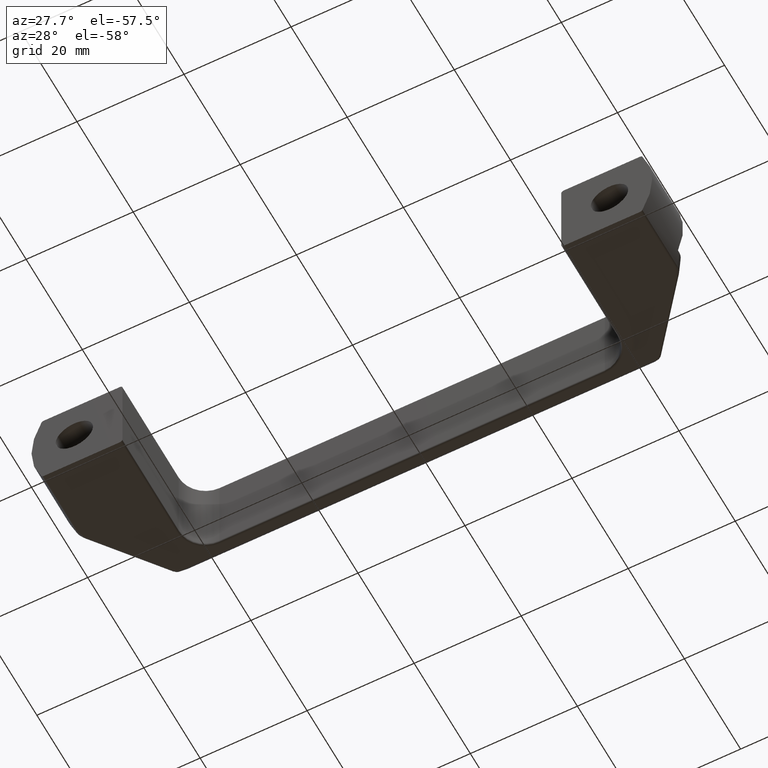
[diagram: clean part render]
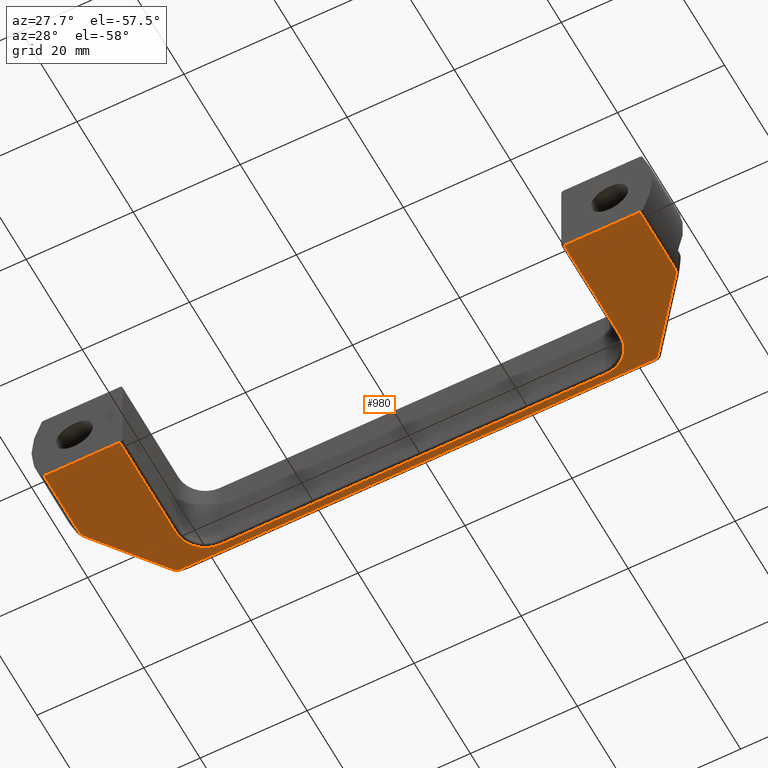
[diagram: same view with one face highlighted and labeled with its STEP entity id]
A machine part, auxiliary view. The second image highlights one B-rep face of the part: STEP entity #980.
In plain terms, the highlighted planar face has unit normal (0, 0, 1).
Its self-contained STEP definition (entity closure, byte-faithful):
#42=B_SPLINE_CURVE_WITH_KNOTS('',3,(#1875,#1876,#1877,#1878),
 .UNSPECIFIED.,.F.,.F.,(4,4),(0.,0.145944618998481),.UNSPECIFIED.);
#43=B_SPLINE_CURVE_WITH_KNOTS('',3,(#1910,#1911,#1912,#1913,#1914),
 .UNSPECIFIED.,.F.,.F.,(4,1,4),(0.,0.0347912856182153,0.0695825712364305),
 .UNSPECIFIED.);
#44=B_SPLINE_CURVE_WITH_KNOTS('',3,(#1946,#1947,#1948,#1949,#1950),
 .UNSPECIFIED.,.F.,.F.,(4,1,4),(0.,0.0347905681330982,0.0695811362661964),
 .UNSPECIFIED.);
#46=B_SPLINE_CURVE_WITH_KNOTS('',3,(#1981,#1982,#1983,#1984),
 .UNSPECIFIED.,.F.,.F.,(4,4),(0.,0.145944462619746),.UNSPECIFIED.);
#83=LINE('',#1475,#141);
#85=LINE('',#1484,#143);
#86=LINE('',#1492,#144);
#87=LINE('',#1498,#145);
#89=LINE('',#1503,#147);
#114=LINE('',#1848,#172);
#115=LINE('',#1882,#173);
#116=LINE('',#1918,#174);
#117=LINE('',#1954,#175);
#118=LINE('',#1986,#176);
#141=VECTOR('',#1199,14.1876166040718);
#143=VECTOR('',#1209,20.);
#144=VECTOR('',#1220,72.);
#145=VECTOR('',#1229,20.);
#147=VECTOR('',#1235,14.1876166040717);
#172=VECTOR('',#1336,12.4158507680428);
#173=VECTOR('',#1343,16.1413156891721);
#174=VECTOR('',#1350,89.1941408859484);
#175=VECTOR('',#1357,16.1413156891721);
#176=VECTOR('',#1362,12.4158507680428);
#191=PLANE('',#1094);
#280=FACE_OUTER_BOUND('',#346,.T.);
#346=EDGE_LOOP('',(#863,#864,#865,#866,#867,#868,#869,#870,#871,#872,#873,
#874,#875,#876,#877,#878));
#383=CIRCLE('',#1036,5.5);
#386=CIRCLE('',#1041,5.5);
#437=VERTEX_POINT('',#1472);
#438=VERTEX_POINT('',#1474);
#439=VERTEX_POINT('',#1478);
#441=VERTEX_POINT('',#1482);
#442=VERTEX_POINT('',#1486);
#443=VERTEX_POINT('',#1490);
#444=VERTEX_POINT('',#1494);
#445=VERTEX_POINT('',#1502);
#487=VERTEX_POINT('',#1846);
#488=VERTEX_POINT('',#1873);
#489=VERTEX_POINT('',#1880);
#490=VERTEX_POINT('',#1908);
#491=VERTEX_POINT('',#1916);
#492=VERTEX_POINT('',#1944);
#493=VERTEX_POINT('',#1952);
#494=VERTEX_POINT('',#1979);
#535=EDGE_CURVE('',#438,#437,#83,.T.);
#540=EDGE_CURVE('',#441,#439,#85,.T.);
#542=EDGE_CURVE('',#442,#441,#383,.T.);
#544=EDGE_CURVE('',#443,#442,#86,.T.);
#546=EDGE_CURVE('',#444,#443,#386,.T.);
#547=EDGE_CURVE('',#438,#444,#87,.T.);
#549=EDGE_CURVE('',#445,#439,#89,.T.);
#613=EDGE_CURVE('',#487,#437,#114,.T.);
#616=EDGE_CURVE('',#488,#487,#42,.T.);
#618=EDGE_CURVE('',#489,#488,#115,.T.);
#620=EDGE_CURVE('',#490,#489,#43,.T.);
#622=EDGE_CURVE('',#491,#490,#116,.T.);
#624=EDGE_CURVE('',#492,#491,#44,.T.);
#626=EDGE_CURVE('',#493,#492,#117,.T.);
#629=EDGE_CURVE('',#494,#493,#46,.T.);
#630=EDGE_CURVE('',#445,#494,#118,.T.);
#863=ORIENTED_EDGE('',*,*,#547,.F.);
#864=ORIENTED_EDGE('',*,*,#535,.T.);
#865=ORIENTED_EDGE('',*,*,#613,.F.);
#866=ORIENTED_EDGE('',*,*,#616,.F.);
#867=ORIENTED_EDGE('',*,*,#618,.F.);
#868=ORIENTED_EDGE('',*,*,#620,.F.);
#869=ORIENTED_EDGE('',*,*,#622,.F.);
#870=ORIENTED_EDGE('',*,*,#624,.F.);
#871=ORIENTED_EDGE('',*,*,#626,.F.);
#872=ORIENTED_EDGE('',*,*,#629,.F.);
#873=ORIENTED_EDGE('',*,*,#630,.F.);
#874=ORIENTED_EDGE('',*,*,#549,.T.);
#875=ORIENTED_EDGE('',*,*,#540,.F.);
#876=ORIENTED_EDGE('',*,*,#542,.F.);
#877=ORIENTED_EDGE('',*,*,#544,.F.);
#878=ORIENTED_EDGE('',*,*,#546,.F.);
#980=ADVANCED_FACE('',(#280),#191,.F.);
#1036=AXIS2_PLACEMENT_3D('',#1488,#1214,#1215);
#1041=AXIS2_PLACEMENT_3D('',#1496,#1225,#1226);
#1094=AXIS2_PLACEMENT_3D('',#2031,#1363,#1364);
#1199=DIRECTION('',(-1.,0.,0.));
#1209=DIRECTION('',(0.,-1.,0.));
#1214=DIRECTION('center_axis',(0.,0.,-1.));
#1215=DIRECTION('ref_axis',(0.707106781186549,0.707106781186546,0.));
#1220=DIRECTION('',(1.,2.46716227694479E-16,0.));
#1225=DIRECTION('center_axis',(0.,0.,-1.));
#1226=DIRECTION('ref_axis',(-0.707106781186547,0.707106781186548,0.));
#1229=DIRECTION('',(-6.66133814775094E-16,1.,0.));
#1235=DIRECTION('',(-1.,-1.2245106889248E-16,0.));
#1336=DIRECTION('',(0.,-1.,0.));
#1343=DIRECTION('',(-0.61964428857902,-0.784882765533426,0.));
#1350=DIRECTION('',(-1.,0.,0.));
#1357=DIRECTION('',(-0.619644288579021,0.784882765533426,0.));
#1362=DIRECTION('',(-1.33226762955019E-15,1.,0.));
#1363=DIRECTION('center_axis',(0.,0.,1.));
#1364=DIRECTION('ref_axis',(1.,0.,0.));
#1472=CARTESIAN_POINT('',(2.31238339592825,0.,-8.5));
#1474=CARTESIAN_POINT('',(16.5,0.,-8.5));
#1475=CARTESIAN_POINT('',(0.,0.,-8.5));
#1478=CARTESIAN_POINT('',(99.5,-9.79608551139843E-16,-8.5));
#1482=CARTESIAN_POINT('',(99.5,20.,-8.5));
#1484=CARTESIAN_POINT('',(99.5,19.8133448529482,-8.5));
#1486=CARTESIAN_POINT('',(94.,25.5,-8.5));
#1488=CARTESIAN_POINT('Origin',(94.,20.,-8.5));
#1490=CARTESIAN_POINT('',(22.,25.5,-8.5));
#1492=CARTESIAN_POINT('',(40.,25.5,-8.5));
#1494=CARTESIAN_POINT('',(16.5,20.,-8.5));
#1496=CARTESIAN_POINT('Origin',(22.,20.,-8.5));
#1498=CARTESIAN_POINT('',(16.5,9.81334485294823,-8.5));
#1502=CARTESIAN_POINT('',(113.687616604072,7.57680267065444E-16,-8.5));
#1503=CARTESIAN_POINT('',(99.,-1.04083408558608E-15,-8.5));
#1846=CARTESIAN_POINT('',(2.31238339592825,12.4158507680428,-8.5));
#1848=CARTESIAN_POINT('',(2.31238339592825,31.,-8.5));
#1873=CARTESIAN_POINT('',(2.81437938137355,13.7579659872792,-8.5));
#1875=CARTESIAN_POINT('Ctrl Pts',(2.81437938137355,13.7579659872792,-8.5));
#1876=CARTESIAN_POINT('Ctrl Pts',(2.51293354933605,13.3761346000317,-8.5));
#1877=CARTESIAN_POINT('Ctrl Pts',(2.31238339592826,12.902332831371,-8.5));
#1878=CARTESIAN_POINT('Ctrl Pts',(2.31238339592826,12.4158507680428,-8.5));
#1880=CARTESIAN_POINT('',(12.81625345832,26.4270064847447,-8.5));
#1882=CARTESIAN_POINT('',(21.1250408419651,36.9514705040284,-8.5));
#1908=CARTESIAN_POINT('',(13.4029295570258,26.7580939831953,-8.5));
#1910=CARTESIAN_POINT('Ctrl Pts',(13.4029295570258,26.7580939831953,-8.5));
#1911=CARTESIAN_POINT('Ctrl Pts',(13.2869586049651,26.7580939831953,-8.5));
#1912=CARTESIAN_POINT('Ctrl Pts',(13.0610817809024,26.6773638381995,-8.5));
#1913=CARTESIAN_POINT('Ctrl Pts',(12.8881141964055,26.5180300863196,-8.5));
#1914=CARTESIAN_POINT('Ctrl Pts',(12.81625345832,26.4270064847447,-8.5));
#1916=CARTESIAN_POINT('',(102.597070442974,26.7580939831953,-8.5));
#1918=CARTESIAN_POINT('',(116.5,26.7580939831953,-8.5));
#1944=CARTESIAN_POINT('',(103.18374654168,26.4270064847447,-8.5));
#1946=CARTESIAN_POINT('Ctrl Pts',(103.18374654168,26.4270064847447,-8.5));
#1947=CARTESIAN_POINT('Ctrl Pts',(103.111887285546,26.5180282091806,-8.5));
#1948=CARTESIAN_POINT('Ctrl Pts',(102.938890881925,26.6773674983004,-8.5));
#1949=CARTESIAN_POINT('Ctrl Pts',(102.713039003418,26.7580939831953,-8.5));
#1950=CARTESIAN_POINT('Ctrl Pts',(102.597070442974,26.7580939831953,-8.5));
#1952=CARTESIAN_POINT('',(113.185620618626,13.7579659872792,-8.5));
#1954=CARTESIAN_POINT('',(102.374959158035,27.4514705040284,-8.5));
#1979=CARTESIAN_POINT('',(113.687616604072,12.4158507680428,-8.5));
#1981=CARTESIAN_POINT('Ctrl Pts',(113.687616604072,12.4158507680428,-8.5));
#1982=CARTESIAN_POINT('Ctrl Pts',(113.687616604072,12.9023323101086,-8.5));
#1983=CARTESIAN_POINT('Ctrl Pts',(113.487066127667,13.3761350091616,-8.5));
#1984=CARTESIAN_POINT('Ctrl Pts',(113.185620618626,13.7579659872792,-8.5));
#1986=CARTESIAN_POINT('',(113.687616604072,31.0000000000001,-8.5));
#2031=CARTESIAN_POINT('Origin',(58.,19.6266897058965,-8.5));